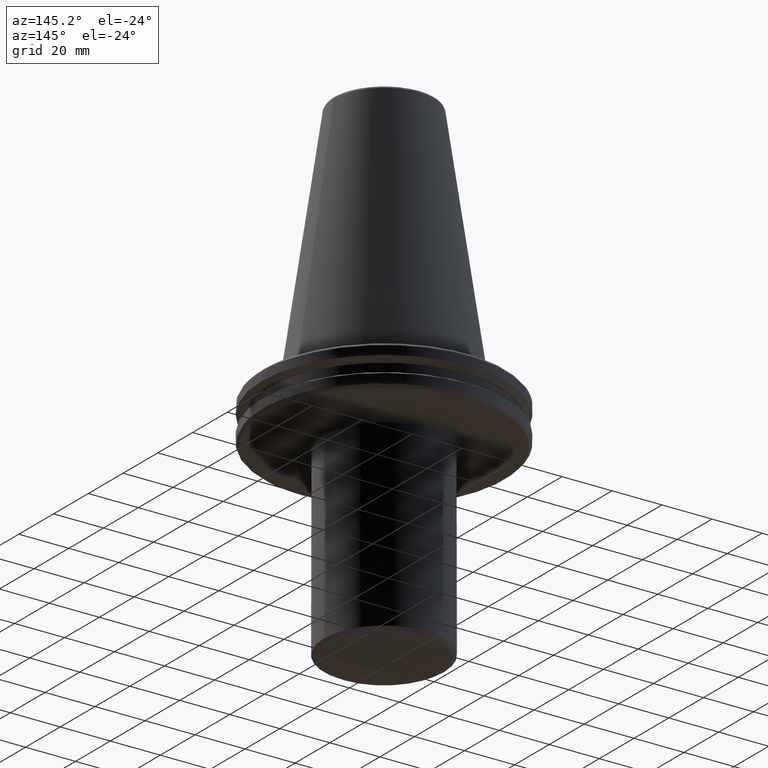
[diagram: clean part render]
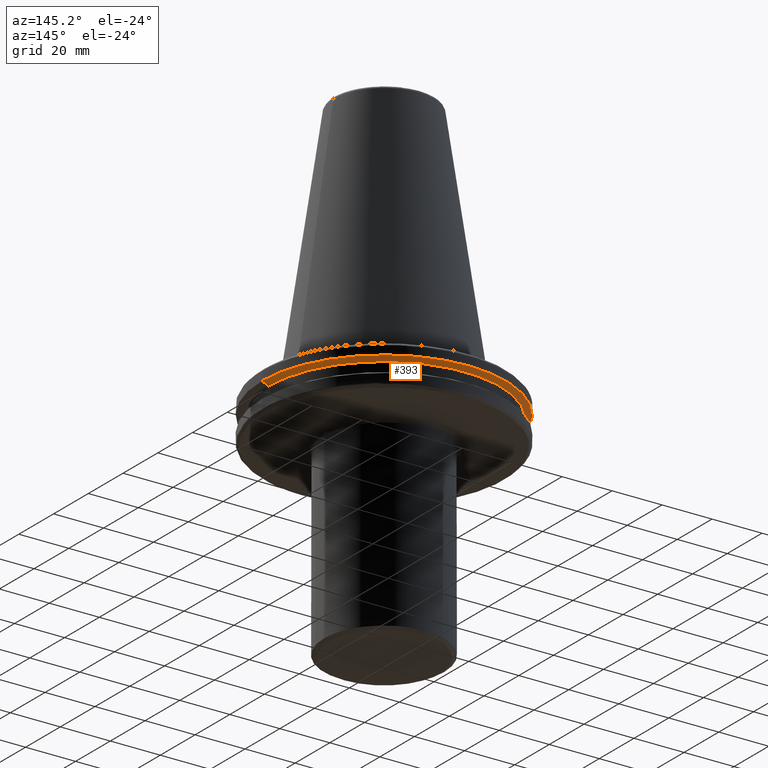
[diagram: same view with one face highlighted and labeled with its STEP entity id]
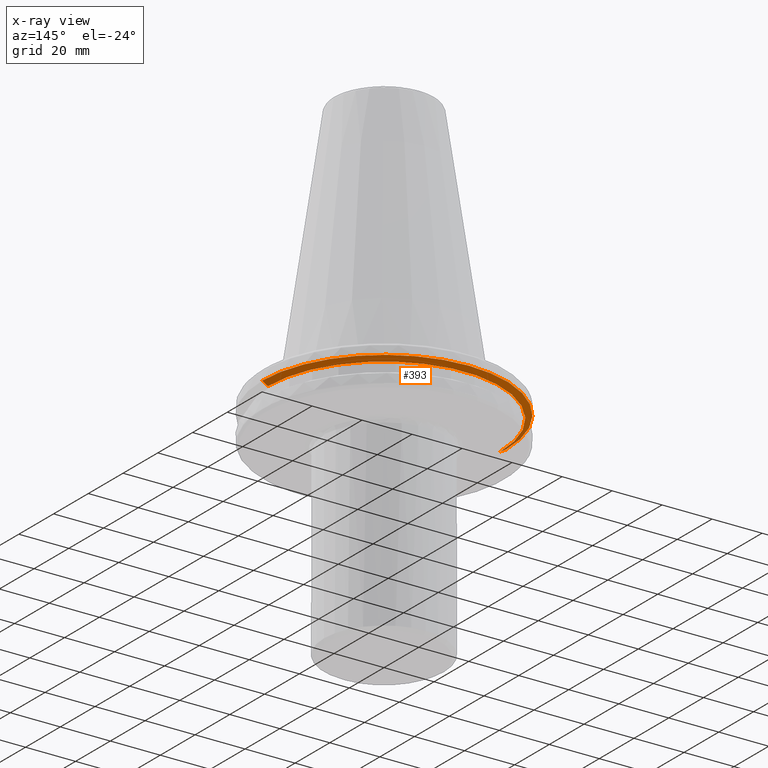
[diagram: x-ray of the same camera — body ghosted, the highlighted face saturated]
A machine part, auxiliary view. The second image highlights one B-rep face of the part: STEP entity #393.
The next image is the same camera in x-ray: the body ghosted, the highlighted face saturated — about 2% of this face is hidden behind the body in this view.
In plain terms, the highlighted conical surface has half-angle 60 deg.
Its self-contained STEP definition (entity closure, byte-faithful):
#174 = CARTESIAN_POINT ( 'NONE',  ( 46.41589653438085600, 0.0000000000000000000, -9.200000000000009900 ) ) ;
#393 = ADVANCED_FACE ( 'NONE', ( #1250 ), #1646, .T. ) ;
#395 = DIRECTION ( 'NONE',  ( 0.0000000000000000000, 0.0000000000000000000, 1.000000000000000000 ) ) ;
#437 = VECTOR ( 'NONE', #664, 1000.000000000000000 ) ;
#581 = DIRECTION ( 'NONE',  ( 1.000000000000000000, 0.0000000000000000000, 0.0000000000000000000 ) ) ;
#606 = DIRECTION ( 'NONE',  ( -0.8660254037844377100, 1.060575238724905800E-016, 0.5000000000000016700 ) ) ;
#664 = DIRECTION ( 'NONE',  ( 0.8660254037844377100, 0.0000000000000000000, 0.5000000000000016700 ) ) ;
#696 = CARTESIAN_POINT ( 'NONE',  ( 48.75000000000000700, 0.0000000000000000000, -7.852404735808348400 ) ) ;
#742 = VERTEX_POINT ( 'NONE', #1266 ) ;
#804 = DIRECTION ( 'NONE',  ( 0.0000000000000000000, 0.0000000000000000000, 1.000000000000000000 ) ) ;
#861 = AXIS2_PLACEMENT_3D ( 'NONE', #1917, #1410, #1551 ) ;
#1068 = CARTESIAN_POINT ( 'NONE',  ( -48.75000000000000700, 5.970153145843347900E-015, -7.852404735808348400 ) ) ;
#1250 = FACE_OUTER_BOUND ( 'NONE', #2440, .T. ) ;
#1266 = CARTESIAN_POINT ( 'NONE',  ( -46.41589653438085600, 5.827230528940885300E-015, -9.200000000000009900 ) ) ;
#1292 = CIRCLE ( 'NONE', #2900, 46.41589653438085600 ) ;
#1295 = EDGE_CURVE ( 'NONE', #2114, #1729, #1665, .T. ) ;
#1410 = DIRECTION ( 'NONE',  ( 0.0000000000000000000, 0.0000000000000000000, 1.000000000000000000 ) ) ;
#1551 = DIRECTION ( 'NONE',  ( 1.000000000000000000, 0.0000000000000000000, 0.0000000000000000000 ) ) ;
#1646 = CONICAL_SURFACE ( 'NONE', #861, 48.75000000000000700, 1.047197551196595900 ) ;
#1665 = LINE ( 'NONE', #696, #437 ) ;
#1693 = EDGE_CURVE ( 'NONE', #1729, #2147, #1802, .T. ) ;
#1712 = EDGE_CURVE ( 'NONE', #742, #2147, #1814, .T. ) ;
#1729 = VERTEX_POINT ( 'NONE', #1892 ) ;
#1802 = CIRCLE ( 'NONE', #2234, 48.75000000000000000 ) ;
#1814 = LINE ( 'NONE', #1068, #1874 ) ;
#1874 = VECTOR ( 'NONE', #606, 1000.000000000000000 ) ;
#1892 = CARTESIAN_POINT ( 'NONE',  ( 48.75000000000000000, 0.0000000000000000000, -7.852404735808352000 ) ) ;
#1917 = CARTESIAN_POINT ( 'NONE',  ( 0.0000000000000000000, 0.0000000000000000000, -7.852404735808348400 ) ) ;
#1924 = CARTESIAN_POINT ( 'NONE',  ( 0.0000000000000000000, 0.0000000000000000000, -7.852404735808352000 ) ) ;
#2003 = ORIENTED_EDGE ( 'NONE', *, *, #3126, .T. ) ;
#2073 = ORIENTED_EDGE ( 'NONE', *, *, #1693, .F. ) ;
#2114 = VERTEX_POINT ( 'NONE', #174 ) ;
#2147 = VERTEX_POINT ( 'NONE', #2343 ) ;
#2234 = AXIS2_PLACEMENT_3D ( 'NONE', #1924, #395, #581 ) ;
#2256 = ORIENTED_EDGE ( 'NONE', *, *, #1712, .T. ) ;
#2292 = CARTESIAN_POINT ( 'NONE',  ( 0.0000000000000000000, 0.0000000000000000000, -9.200000000000009900 ) ) ;
#2343 = CARTESIAN_POINT ( 'NONE',  ( -48.75000000000000000, 5.970153145843347100E-015, -7.852404735808352000 ) ) ;
#2440 = EDGE_LOOP ( 'NONE', ( #2003, #2256, #2073, #2918 ) ) ;
#2531 = DIRECTION ( 'NONE',  ( 1.000000000000000000, 0.0000000000000000000, 0.0000000000000000000 ) ) ;
#2900 = AXIS2_PLACEMENT_3D ( 'NONE', #2292, #804, #2531 ) ;
#2918 = ORIENTED_EDGE ( 'NONE', *, *, #1295, .F. ) ;
#3126 = EDGE_CURVE ( 'NONE', #2114, #742, #1292, .T. ) ;